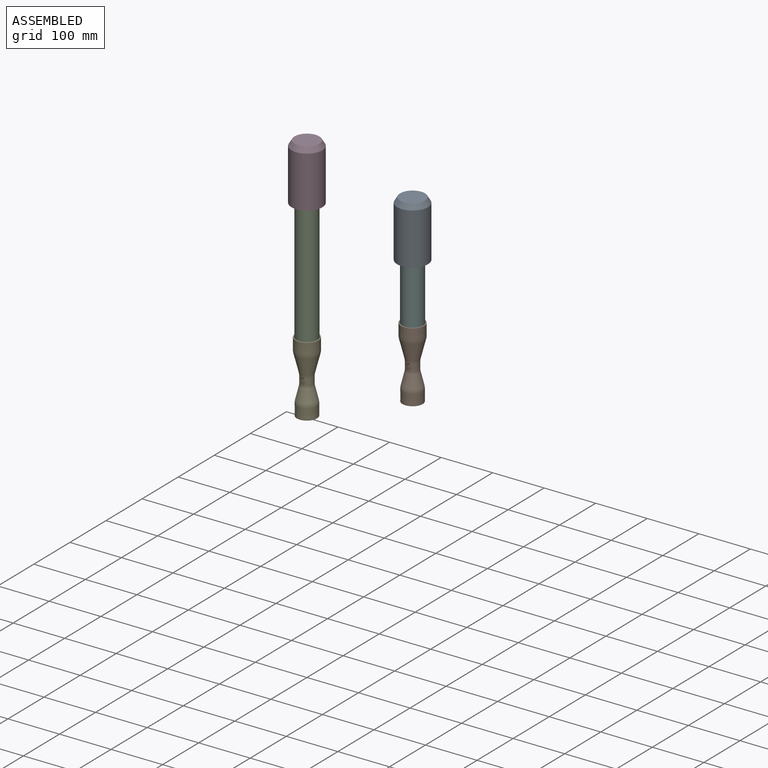
[diagram: assembled view]
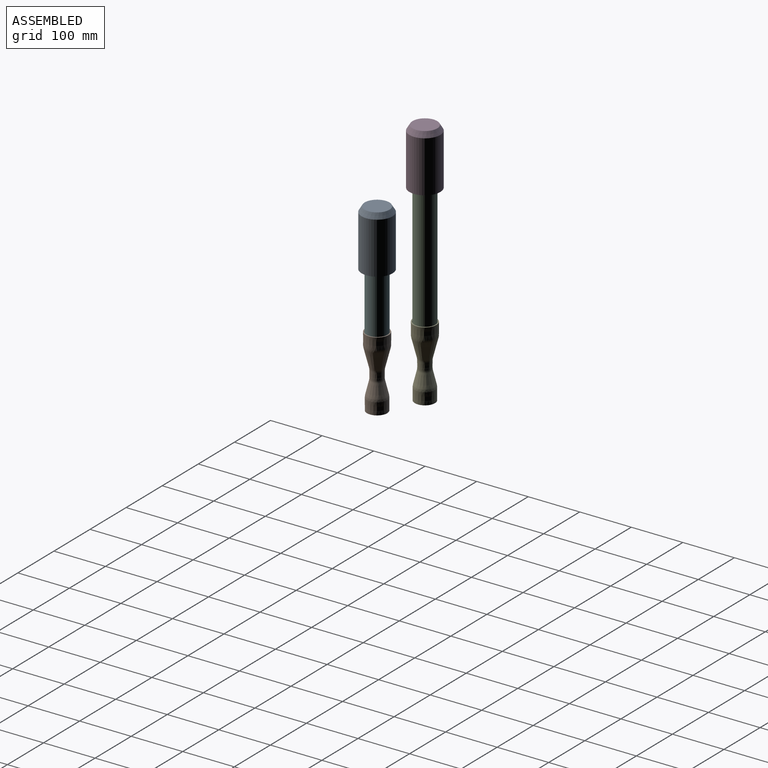
[diagram: assembled view, second angle]
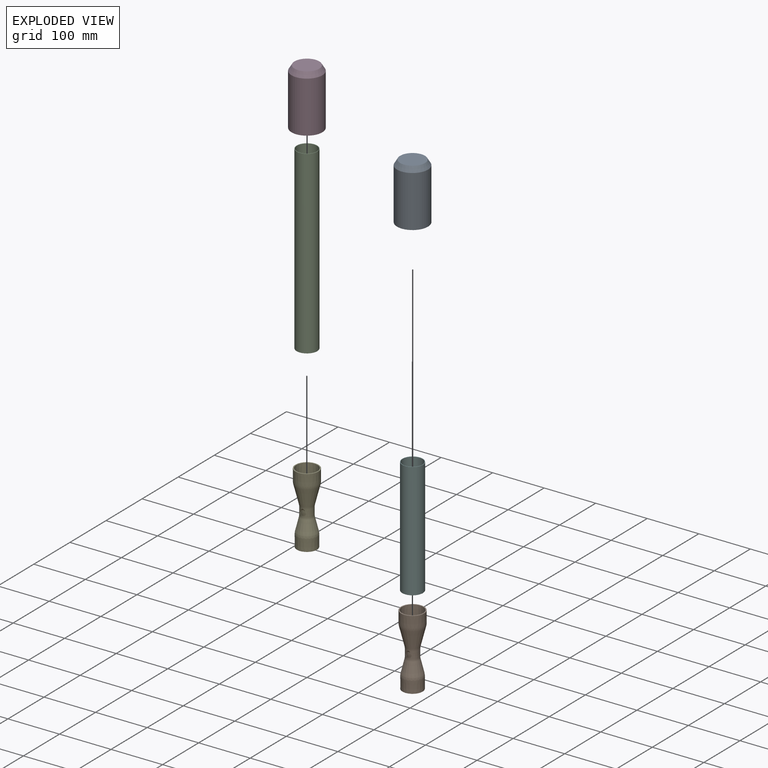
[diagram: exploded view]
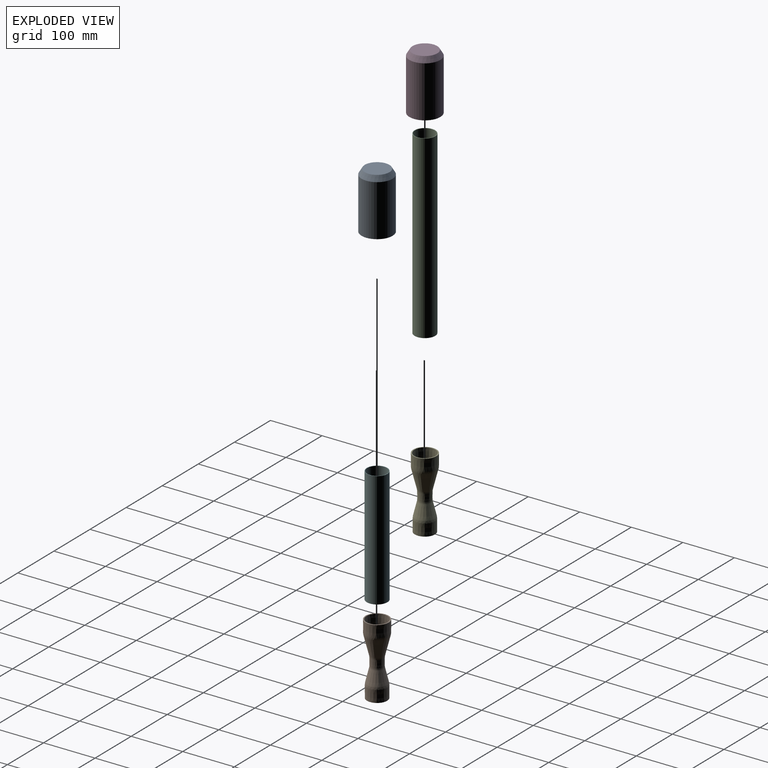
[diagram: exploded view, second angle]
ASSEMBLY  parts=6 mates=4
PART A: 52 faces, bbox 60.3x60.3x110.3 mm
  f0: bspline ~35.23x16.61mm, area 233.1mm2, adj f1,f10,f12,f19,f21,f28,f32,f47
  f1: bspline ~20.78x8.62mm, area 33.9mm2, adj f0,f19,f20,f49,f50
  f2: bspline ~35.23x17.34mm, area 233.1mm2, adj f3,f10,f12,f16,f18,f26,f33,f41
  f3: bspline ~20.78x7.04mm, area 33.9mm2, adj f2,f16,f17,f43,f44
  f4: bspline ~34.04x16.64mm, area 233.1mm2, adj f5,f10,f12,f13,f15,f30,f31,f34
  f5: bspline ~20.78x9.04mm, area 33.9mm2, adj f4,f13,f14,f35,f38
  f6: cylinder r=30mm len=100mm, axis (0,0,1), area 18849.6mm2, adj f7,f9
  f7: plane 60x60mm, normal (0,0,-1), area 364.4mm2, adj f6,f10
  f8: plane 48x48mm, normal (0,0,1), area 1809.6mm2, adj f9
  f9: cone r=24mm half-angle=31deg, axis (0,0,-1), area 1978.4mm2, adj f6,f8
  f10: cylinder r=28mm len=99.45mm, axis (0,0,1), area 17329.3mm2, adj f0,f2,f4,f7,f12,f14,f17,f20
  f11: plane 45.74x45.74mm, normal (0,0,-1), area 1642.8mm2, adj f12
  f12: cone r=22.29mm half-angle=31deg, axis (0,0,-1), area 1541.3mm2, adj f0,f2,f4,f10,f11,f14,f17,f20
  f13: plane 2.68x1.83mm, normal (0,0,-1), area 0.5mm2, adj f4,f5,f14,f22,f29,f30
  f14: bspline ~35.23x17.15mm, area 231.2mm2, adj f5,f10,f12,f13,f15,f29,f31
  f15: bspline ~20.78x9.04mm, area 1.3mm2, adj f4,f14,f31,f39
  f16: plane 2.7x2.42mm, normal (0,0,-1), area 0.5mm2, adj f2,f3,f17,f24,f25,f26
  f17: bspline ~35.23x16.55mm, area 231.2mm2, adj f3,f10,f12,f16,f18,f25,f33
  f18: bspline ~1.91x1.14mm, area 1.3mm2, adj f2,f17,f33,f45
  f19: plane 2.44x2.07mm, normal (0,0,-1), area 0.5mm2, adj f0,f1,f20,f23,f27,f28
  f20: bspline ~35.23x17.03mm, area 231.2mm2, adj f1,f10,f12,f19,f21,f27,f32
  f21: bspline ~20.78x8.62mm, area 1.3mm2, adj f0,f20,f32,f51
  f22: cone r=20mm half-angle=45deg, axis (0,0,-1), area 3.4mm2, adj f10,f13,f29,f30
  f23: cone r=20mm half-angle=45deg, axis (0,0,-1), area 3.4mm2, adj f10,f19,f27,f28
  f24: cone r=20mm half-angle=45deg, axis (0,0,-1), area 3.4mm2, adj f10,f16,f25,f26
  f25: bspline ~12.67x12.33mm, area 15.8mm2, adj f10,f16,f17,f24
  f26: bspline ~10.79x10.37mm, area 11.7mm2, adj f2,f10,f16,f24
  f27: bspline ~12.55x12.33mm, area 15.8mm2, adj f10,f19,f20,f23
  f28: bspline ~10.88x10.37mm, area 11.7mm2, adj f0,f10,f19,f23
  f29: bspline ~12.33x9.49mm, area 15.8mm2, adj f10,f13,f14,f22
  f30: bspline ~10.38x8.35mm, area 11.7mm2, adj f4,f10,f13,f22
  f31: cone r=23.55mm half-angle=29.5deg, axis (0,0,1), area 14.5mm2, adj f4,f12,f14,f15
  f32: cone r=23.55mm half-angle=29.5deg, axis (0,0,1), area 14.5mm2, adj f0,f12,f20,f21
  f33: cone r=23.55mm half-angle=29.5deg, axis (0,0,1), area 14.5mm2, adj f2,f12,f17,f18
  f34: plane 5x1.78mm, normal (0,1,0), area 4.4mm2, adj f4,f37,f38
  f35: plane 5.01x2.12mm, normal (-1,0,0), area 9.8mm2, adj f5,f36,f38,f39
  f36: plane 5x2mm, normal (0,-1,0), area 10mm2, adj f35,f37,f38,f39
  f37: plane 5x2.5mm, normal (1,0,0), area 12.5mm2, adj f4,f34,f36,f38,f39
  f38: plane 2.5x2mm, normal (0,0,-1), area 4.8mm2, adj f4,f5,f34,f35,f36,f37
  f39: plane 2.11x2mm, normal (0,0,1), area 4.2mm2, adj f15,f35,f36,f37
  f40: plane 5x1.73mm, normal (0.87,0.5,0), area 10mm2, adj f41,f43,f44,f45
  f41: plane 5x2.17mm, normal (-0.5,0.87,0), area 12.5mm2, adj f2,f40,f42,f44,f45
  f42: plane 5x1.54mm, normal (-0.87,-0.5,0), area 4.4mm2, adj f2,f41,f44
  f43: plane 5.01x1.84mm, normal (0.5,-0.87,0), area 9.8mm2, adj f3,f40,f44,f45
  f44: plane 3.17x2.79mm, normal (0,0,-1), area 4.8mm2, adj f2,f3,f40,f41,f42,f43
  f45: plane 2.83x2.79mm, normal (0,0,1), area 4.2mm2, adj f18,f40,f41,f43
  f46: plane 5x1.73mm, normal (-0.87,0.5,0), area 10mm2, adj f47,f49,f50,f51
  f47: plane 5x2.17mm, normal (-0.5,-0.87,0), area 12.5mm2, adj f0,f46,f48,f50,f51
  f48: plane 5x1.54mm, normal (0.87,-0.5,0), area 4.4mm2, adj f0,f47,f50
  f49: plane 5.01x1.84mm, normal (0.5,0.87,0), area 9.8mm2, adj f1,f46,f50,f51
  f50: plane 3.05x2.98mm, normal (0,0,-1), area 4.8mm2, adj f0,f1,f46,f47,f48,f49
  f51: plane 2.83x2.79mm, normal (0,0,1), area 4.2mm2, adj f21,f46,f47,f49
PART B: 24 faces, bbox 44.9x48.6x138.1 mm
  f0: cone r=10.32mm half-angle=13.8deg, axis (0,0,-1), area 2288.7mm2, adj f15,f23
  f1: cone r=17.7mm half-angle=0.2deg, axis (0,0,1), area 2474.4mm2, adj f2,f15
  f2: cone r=19.51mm half-angle=89.8deg, axis (0,0,-1), area 221.6mm2, adj f1,f3
  f3: cone r=19.6mm half-angle=0.2deg, axis (0,0,1), area 2769.4mm2, adj f2,f16
  f4: cone r=12.22mm half-angle=13.8deg, axis (0,0,-1), area 2599.3mm2, adj f16,f17
  f5: cone r=12.28mm half-angle=0.2deg, axis (0,0,1), area 900.7mm2, adj f14,f17,f18
  f6: cone r=22.38mm half-angle=14.2deg, axis (0,0,1), area 3954mm2, adj f18,f19,f20
  f7: cone r=22.38mm half-angle=0.2deg, axis (0,0,1), area 3177mm2, adj f8,f20
  f8: cone r=20.47mm half-angle=89.8deg, axis (0,0,-1), area 269.8mm2, adj f7,f9
  f9: cone r=20.4mm half-angle=0.2deg, axis (0,0,1), area 2554.6mm2, adj f8,f10
  f10: cone r=20.4mm half-angle=89.8deg, axis (0,0,-1), area 288.8mm2, adj f9,f11
  f11: cone r=18.01mm half-angle=0.2deg, axis (0,0,1), area 1417.6mm2, adj f10,f21
  f12: cone r=17.96mm half-angle=14.2deg, axis (0,0,1), area 2315mm2, adj f21,f22
  f13: cone r=10.38mm half-angle=0.2deg, axis (0,0,1), area 770.6mm2, adj f14,f22,f23
  f14: bspline ~27.23x14.02mm, area 90.5mm2, adj f5,f13,f19,f23
  f15: revolved ~35.38x35.38mm, area 537.3mm2, adj f0,f1
  f16: revolved ~39.18x39.18mm, area 595.6mm2, adj f3,f4
  f17: torus R=32.22mm, axis (0,0,1), area 381.2mm2, adj f4,f5
  f18: torus R=32.27mm, axis (0,0,1), area 367.1mm2, adj f5,f6,f19
  f19: bspline ~5.46x5.3mm, area 15.1mm2, adj f6,f14,f18
  f20: torus R=2.39mm, axis (0,0,-1), area 681.2mm2, adj f6,f7
  f21: revolved ~35.93x35.93mm, area 545.3mm2, adj f11,f12
  f22: torus R=30.37mm, axis (0,0,-1), area 324.7mm2, adj f12,f13
  f23: torus R=30.32mm, axis (0,0,-1), area 321.7mm2, adj f0,f13,f14
PART C: 4 faces, bbox 40x40x350 mm
  f0: cylinder r=19.05mm len=350mm, axis (0,0,-1), area 41893.1mm2, adj f2,f3
  f1: cylinder r=20mm len=350mm, axis (0,0,-1), area 43982.3mm2, adj f2,f3
  f2: plane 40x40mm, normal (0,0,1), area 116.5mm2, adj f0,f1
  f3: plane 40x40mm, normal (0,0,-1), area 116.5mm2, adj f0,f1
PART D: same geometry as A
PART E: same geometry as B
PART F: 4 faces, bbox 40x40x225 mm
  f0: cylinder r=19.05mm len=225mm, axis (0,0,-1), area 26931.3mm2, adj f2,f3
  f1: cylinder r=20mm len=225mm, axis (0,0,-1), area 28274.3mm2, adj f2,f3
  f2: plane 40x40mm, normal (0,0,1), area 116.5mm2, adj f0,f1
  f3: plane 40x40mm, normal (0,0,-1), area 116.5mm2, adj f0,f1
PLACE A t=(271.75,47.34,0.66)mm
PLACE B rot(axis=(0,1,0),0.2deg) t=(162.97,47.34,-234.14)mm
PLACE C t=(310.55,-111.66,-299.95)mm
PLACE D t=(90.69,13.28,65.05)mm
PLACE E rot(axis=(0,1,0),0.2deg) t=(-18.1,13.28,-294.77)mm
PLACE F t=(536.92,-77.6,-239.34)mm
MATE fastened A.f6 <-> F.f0  axis (0,0,-1) through (271.75,47.34,-1.34)mm
MATE fastened B.f1 <-> F.f0  axis (0,0,1) through (271.75,47.34,-239.34)mm
MATE fastened C.f0 <-> D.f6  axis (0,0,1) through (90.69,13.28,50.05)mm
MATE fastened E.f1 <-> C.f0  axis (0,0,1) through (90.69,13.28,-299.95)mm
